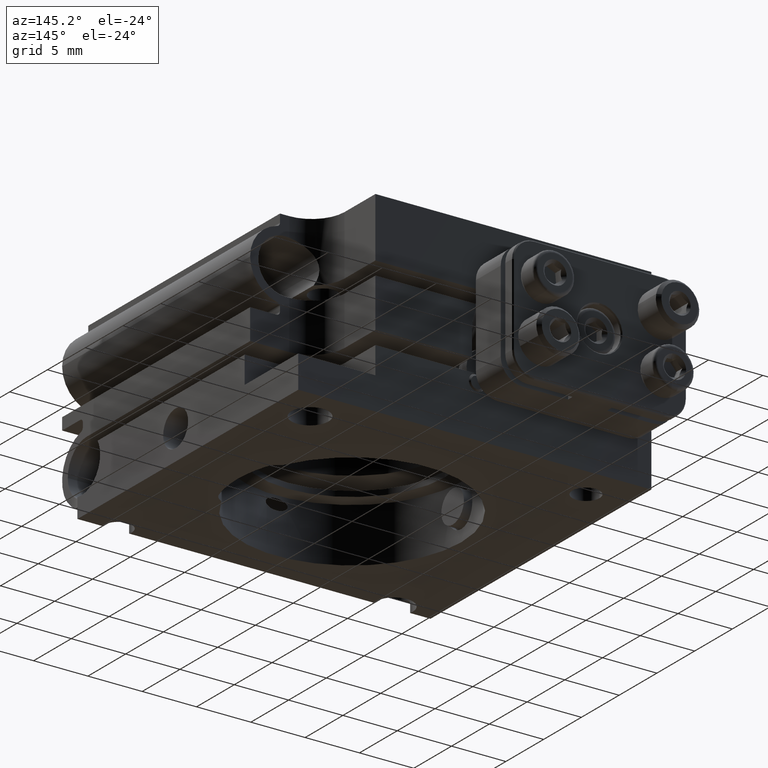
[diagram: clean part render]
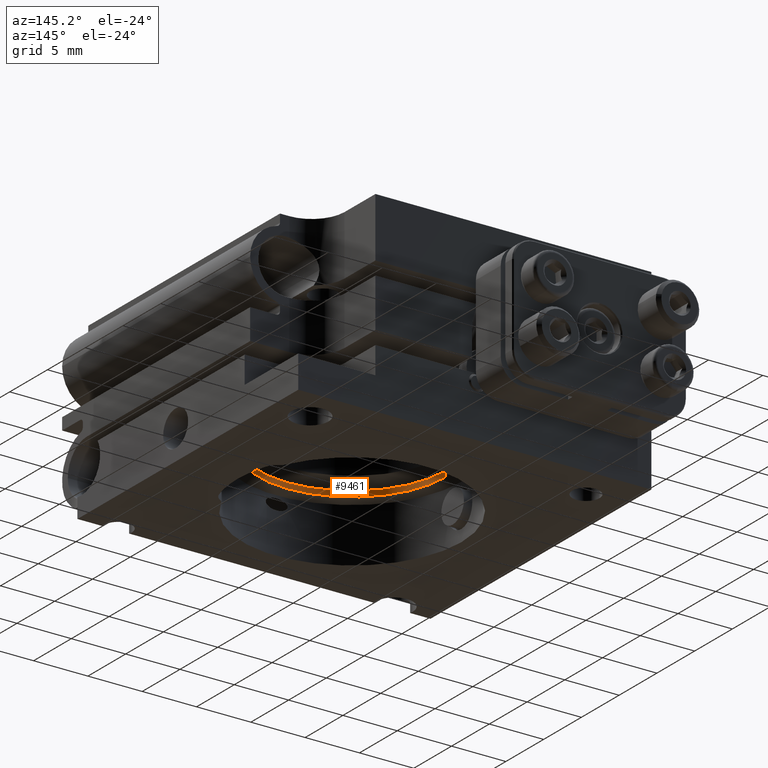
[diagram: same view with one face highlighted and labeled with its STEP entity id]
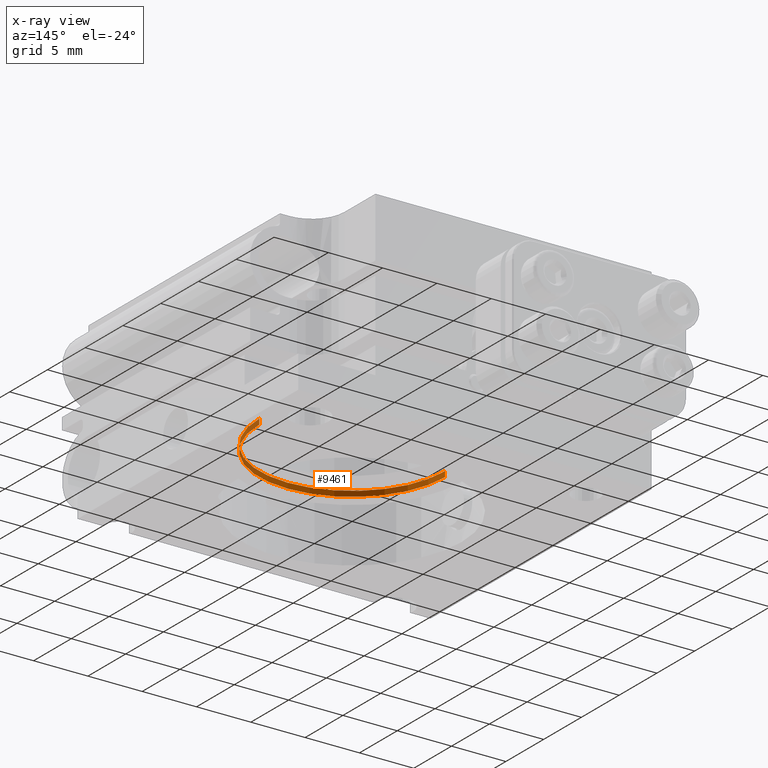
[diagram: x-ray of the same camera — body ghosted, the highlighted face saturated]
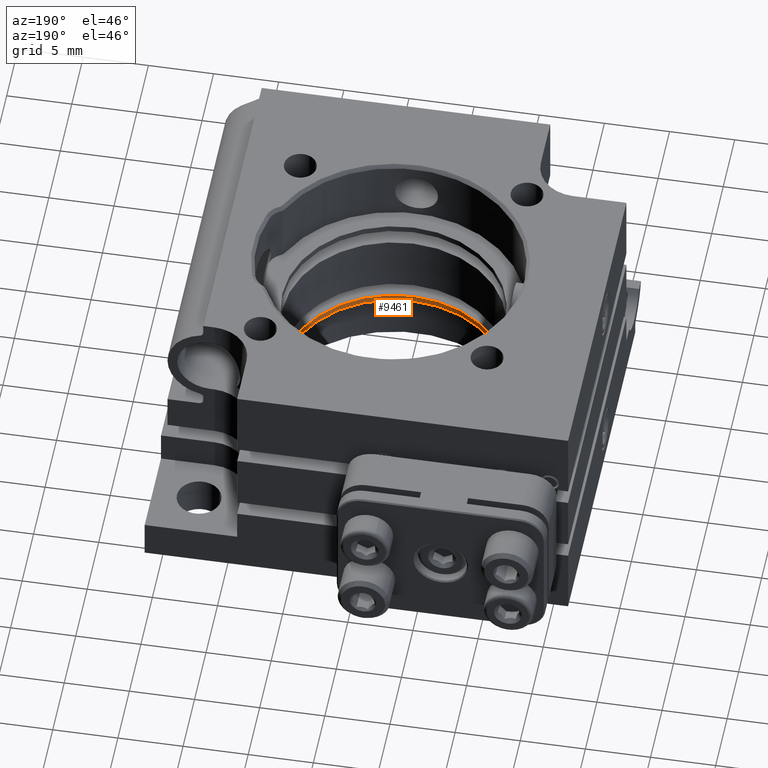
[diagram: same view with one face highlighted and labeled with its STEP entity id]
A machine part, auxiliary view. The second image highlights one B-rep face of the part: STEP entity #9461.
The next image is the same camera in x-ray: the body ghosted, the highlighted face saturated — about 16% of this face is hidden behind the body in this view.
A second angle (auxiliary view) of the same face is appended — the face is thin or edge-on in the first view.
In plain terms, the highlighted cylindrical surface (partial cylindrical patch) has radius 8.55 mm, axis along (-0, 0, 1).
Its self-contained STEP definition (entity closure, byte-faithful):
#594 = EDGE_CURVE ( 'NONE', #2103, #1732, #3326, .T. ) ;
#1589 = DIRECTION ( 'NONE',  ( 1.000000000000000000, 1.609823385706476984E-15, 0.000000000000000000 ) ) ;
#1732 = VERTEX_POINT ( 'NONE', #10293 ) ;
#2002 = DIRECTION ( 'NONE',  ( -9.244463733058804623E-33, 5.551115123125772225E-17, 1.000000000000000000 ) ) ;
#2103 = VERTEX_POINT ( 'NONE', #11152 ) ;
#2695 = CIRCLE ( 'NONE', #9819, 8.549999999999998934 ) ;
#2764 = EDGE_LOOP ( 'NONE', ( #5735, #5405, #2953, #8181 ) ) ;
#2853 = FACE_OUTER_BOUND ( 'NONE', #2764, .T. ) ;
#2953 = ORIENTED_EDGE ( 'NONE', *, *, #9618, .T. ) ;
#3326 = CIRCLE ( 'NONE', #11022, 8.549999999999998934 ) ;
#3497 = CARTESIAN_POINT ( 'NONE',  ( 8.549999999999998934, 1.221731657343806815E-14, -8.999999999999998224 ) ) ;
#3540 = DIRECTION ( 'NONE',  ( -9.244463733058804623E-33, 5.551115123125772225E-17, 1.000000000000000000 ) ) ;
#4043 = EDGE_CURVE ( 'NONE', #1732, #6073, #8925, .T. ) ;
#4422 = CARTESIAN_POINT ( 'NONE',  ( -8.549999999999998934, -1.397215676490759127E-14, -3.499999999999999556 ) ) ;
#4445 = DIRECTION ( 'NONE',  ( -1.000000000000000000, -1.609823385706476984E-15, 0.000000000000000000 ) ) ;
#4485 = DIRECTION ( 'NONE',  ( 1.000000000000000000, 1.609823385706476984E-15, 0.000000000000000000 ) ) ;
#4506 = AXIS2_PLACEMENT_3D ( 'NONE', #7158, #3540, #4445 ) ;
#5107 = CARTESIAN_POINT ( 'NONE',  ( 3.697785493223490648E-32, -2.220446049250312095E-16, -3.999999999999999112 ) ) ;
#5405 = ORIENTED_EDGE ( 'NONE', *, *, #594, .F. ) ;
#5578 = DIRECTION ( 'NONE',  ( -9.244463733058804623E-33, 5.551115123125772225E-17, 1.000000000000000000 ) ) ;
#5735 = ORIENTED_EDGE ( 'NONE', *, *, #4043, .F. ) ;
#6073 = VERTEX_POINT ( 'NONE', #7001 ) ;
#6458 = LINE ( 'NONE', #9935, #7279 ) ;
#7001 = CARTESIAN_POINT ( 'NONE',  ( 8.549999999999998934, 1.250875011740217174E-14, -3.499999999999999556 ) ) ;
#7158 = CARTESIAN_POINT ( 'NONE',  ( 8.320017359752856696E-32, -4.996003610813202460E-16, -8.999999999999998224 ) ) ;
#7279 = VECTOR ( 'NONE', #5578, 1000.000000000000000 ) ;
#7577 = VECTOR ( 'NONE', #2002, 1000.000000000000000 ) ;
#8181 = ORIENTED_EDGE ( 'NONE', *, *, #10981, .F. ) ;
#8614 = DIRECTION ( 'NONE',  ( -9.244463733058804623E-33, 5.551115123125772225E-17, 1.000000000000000000 ) ) ;
#8925 = LINE ( 'NONE', #3497, #7577 ) ;
#9414 = DIRECTION ( 'NONE',  ( 9.244463733058804623E-33, -5.551115123125772225E-17, -1.000000000000000000 ) ) ;
#9461 = ADVANCED_FACE ( 'NONE', ( #2853 ), #9830, .F. ) ;
#9618 = EDGE_CURVE ( 'NONE', #2103, #11077, #6458, .T. ) ;
#9819 = AXIS2_PLACEMENT_3D ( 'NONE', #10095, #9414, #1589 ) ;
#9830 = CYLINDRICAL_SURFACE ( 'NONE', #4506, 8.549999999999998934 ) ;
#9935 = CARTESIAN_POINT ( 'NONE',  ( -8.549999999999998934, -1.426359030887169487E-14, -8.999999999999998224 ) ) ;
#10095 = CARTESIAN_POINT ( 'NONE',  ( 3.235562306570586339E-32, -1.942890293094019755E-16, -3.499999999999999556 ) ) ;
#10293 = CARTESIAN_POINT ( 'NONE',  ( 8.549999999999998934, 1.250875011740217174E-14, -3.999999999999999112 ) ) ;
#10981 = EDGE_CURVE ( 'NONE', #6073, #11077, #2695, .T. ) ;
#11022 = AXIS2_PLACEMENT_3D ( 'NONE', #5107, #8614, #4485 ) ;
#11077 = VERTEX_POINT ( 'NONE', #4422 ) ;
#11152 = CARTESIAN_POINT ( 'NONE',  ( -8.549999999999998934, -1.397215676490759127E-14, -3.999999999999999112 ) ) ;